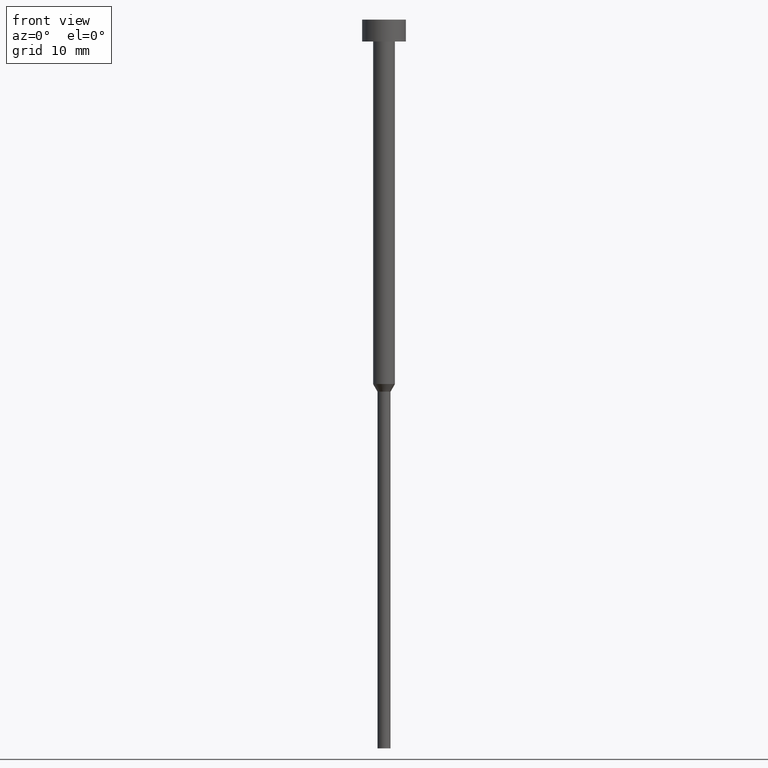
[diagram: clean part render]
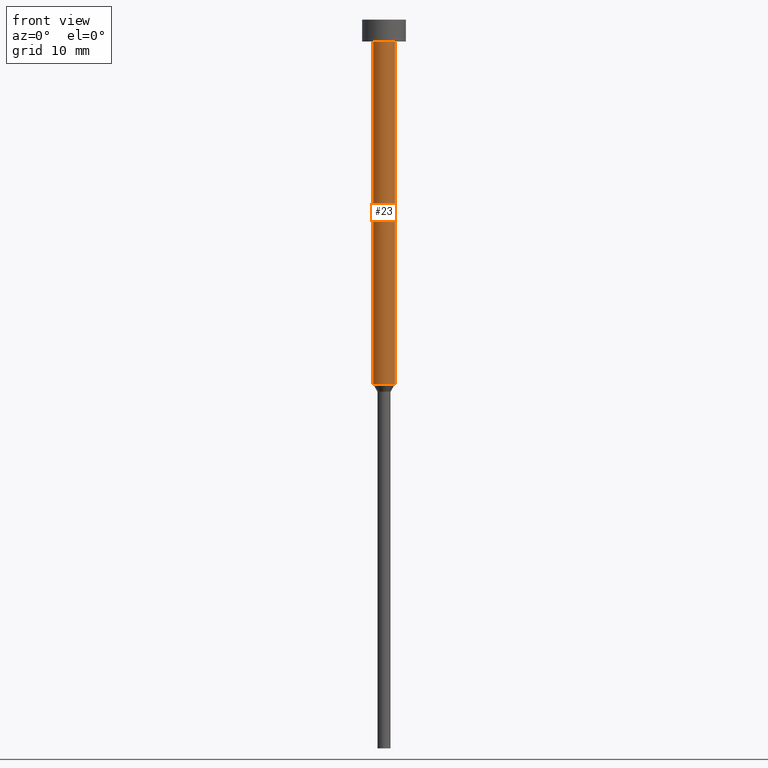
[diagram: same view with one face highlighted and labeled with its STEP entity id]
A machine part, front view. The second image highlights one B-rep face of the part: STEP entity #23.
In plain terms, the highlighted cylindrical surface (edge-blend (fillet) strip) has radius 1.5 mm, axis along (-0, -0, 1).
Its self-contained STEP definition (entity closure, byte-faithful):
#3 = CARTESIAN_POINT ( 'NONE',  ( 1.500000000000000000, 0.000000000000000000, -50.00000000000000000 ) ) ;
#14 = AXIS2_PLACEMENT_3D ( 'NONE', #43, #322, #76 ) ;
#23 = ADVANCED_FACE ( 'NONE', ( #344 ), #210, .T. ) ;
#28 = CARTESIAN_POINT ( 'NONE',  ( -1.500000000000000000, 1.836970198721029934E-16, -50.00000000000000000 ) ) ;
#33 = DIRECTION ( 'NONE',  ( -0.000000000000000000, -0.000000000000000000, 1.000000000000000000 ) ) ;
#43 = CARTESIAN_POINT ( 'NONE',  ( 0.000000000000000000, 0.000000000000000000, 0.000000000000000000 ) ) ;
#54 = DIRECTION ( 'NONE',  ( 1.000000000000000000, 0.000000000000000000, 0.000000000000000000 ) ) ;
#61 = EDGE_CURVE ( 'NONE', #182, #96, #241, .T. ) ;
#76 = DIRECTION ( 'NONE',  ( 1.000000000000000000, 0.000000000000000000, 0.000000000000000000 ) ) ;
#80 = CARTESIAN_POINT ( 'NONE',  ( 1.500000000000000000, 0.000000000000000000, -3.000000000000000888 ) ) ;
#84 = DIRECTION ( 'NONE',  ( -0.000000000000000000, -0.000000000000000000, 1.000000000000000000 ) ) ;
#96 = VERTEX_POINT ( 'NONE', #80 ) ;
#97 = VERTEX_POINT ( 'NONE', #28 ) ;
#106 = CARTESIAN_POINT ( 'NONE',  ( 0.000000000000000000, 0.000000000000000000, -3.000000000000000888 ) ) ;
#152 = ORIENTED_EDGE ( 'NONE', *, *, #184, .F. ) ;
#158 = VECTOR ( 'NONE', #84, 1000.000000000000000 ) ;
#161 = CARTESIAN_POINT ( 'NONE',  ( 0.000000000000000000, 0.000000000000000000, -50.00000000000000000 ) ) ;
#166 = CARTESIAN_POINT ( 'NONE',  ( 1.500000000000000000, 0.000000000000000000, 0.000000000000000000 ) ) ;
#173 = AXIS2_PLACEMENT_3D ( 'NONE', #161, #293, #189 ) ;
#181 = EDGE_LOOP ( 'NONE', ( #152, #287, #207, #289 ) ) ;
#182 = VERTEX_POINT ( 'NONE', #332 ) ;
#184 = EDGE_CURVE ( 'NONE', #97, #182, #296, .T. ) ;
#185 = VERTEX_POINT ( 'NONE', #3 ) ;
#189 = DIRECTION ( 'NONE',  ( 1.000000000000000000, 0.000000000000000000, 0.000000000000000000 ) ) ;
#196 = CIRCLE ( 'NONE', #173, 1.500000000000000000 ) ;
#207 = ORIENTED_EDGE ( 'NONE', *, *, #321, .T. ) ;
#210 = CYLINDRICAL_SURFACE ( 'NONE', #14, 1.500000000000000000 ) ;
#211 = VECTOR ( 'NONE', #251, 1000.000000000000000 ) ;
#233 = EDGE_CURVE ( 'NONE', #97, #185, #196, .T. ) ;
#241 = CIRCLE ( 'NONE', #355, 1.500000000000000000 ) ;
#251 = DIRECTION ( 'NONE',  ( -0.000000000000000000, -0.000000000000000000, 1.000000000000000000 ) ) ;
#270 = CARTESIAN_POINT ( 'NONE',  ( -1.500000000000000000, 1.836970198721029934E-16, 0.000000000000000000 ) ) ;
#287 = ORIENTED_EDGE ( 'NONE', *, *, #233, .T. ) ;
#289 = ORIENTED_EDGE ( 'NONE', *, *, #61, .F. ) ;
#293 = DIRECTION ( 'NONE',  ( -0.000000000000000000, -0.000000000000000000, 1.000000000000000000 ) ) ;
#296 = LINE ( 'NONE', #270, #158 ) ;
#301 = LINE ( 'NONE', #166, #211 ) ;
#321 = EDGE_CURVE ( 'NONE', #185, #96, #301, .T. ) ;
#322 = DIRECTION ( 'NONE',  ( -0.000000000000000000, -0.000000000000000000, 1.000000000000000000 ) ) ;
#332 = CARTESIAN_POINT ( 'NONE',  ( -1.500000000000000000, 1.836970198721029934E-16, -3.000000000000000888 ) ) ;
#344 = FACE_OUTER_BOUND ( 'NONE', #181, .T. ) ;
#355 = AXIS2_PLACEMENT_3D ( 'NONE', #106, #33, #54 ) ;